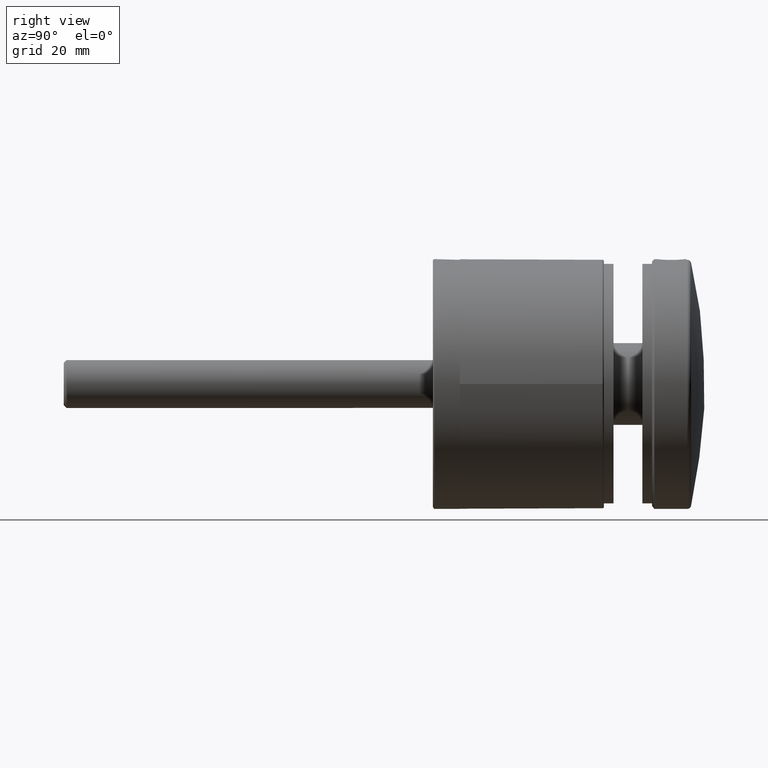
[diagram: clean part render]
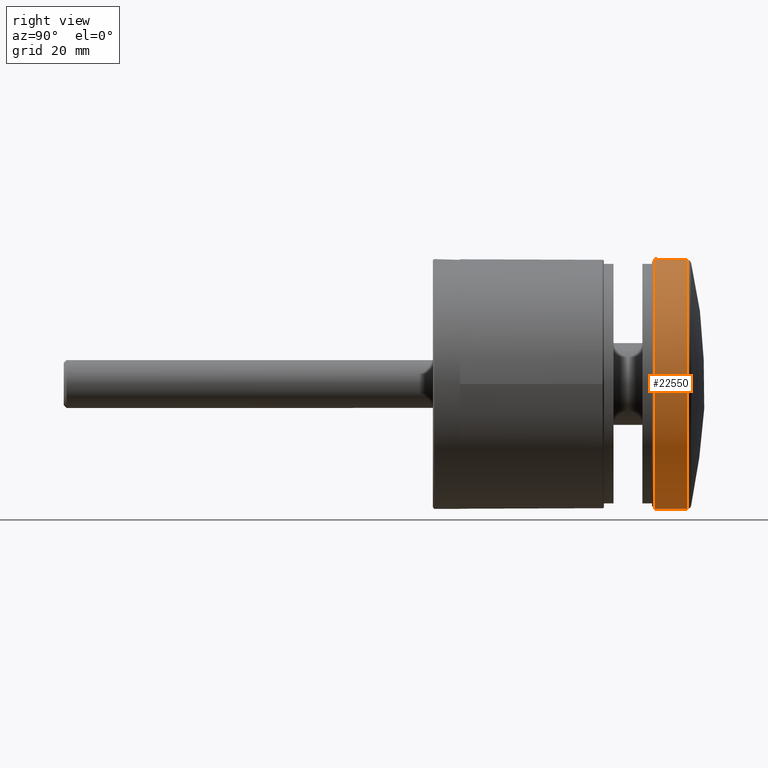
[diagram: same view with one face highlighted and labeled with its STEP entity id]
A machine part, right view. The second image highlights one B-rep face of the part: STEP entity #22550.
In plain terms, the highlighted cylindrical surface (bore or boss wall) has radius 26 mm, axis along (-0, -1, -0).
Its self-contained STEP definition (entity closure, byte-faithful):
#39 = DIRECTION ( 'NONE',  ( 0.000000000000000000, 0.000000000000000000, 1.000000000000000000 ) ) ;
#732 = CARTESIAN_POINT ( 'NONE',  ( -1.505373951746082462, 6.602352556404647466, 25.95689653493615268 ) ) ;
#845 = CARTESIAN_POINT ( 'NONE',  ( 1.504046466543740079, 1.396782041410566277, 25.95698036821287147 ) ) ;
#1066 = CARTESIAN_POINT ( 'NONE',  ( -2.846471190645785576, 3.032397907654219793, 25.84382593197625511 ) ) ;
#1185 = CARTESIAN_POINT ( 'NONE',  ( 2.999999999999992895, 4.000000000000000000, 25.82634314028992151 ) ) ;
#2791 = DIRECTION ( 'NONE',  ( -0.000000000000000000, -1.000000000000000000, -0.000000000000000000 ) ) ;
#3423 = CARTESIAN_POINT ( 'NONE',  ( -0.3960800891403071788, 6.980161338370850288, 25.99769051530947905 ) ) ;
#3545 = CARTESIAN_POINT ( 'NONE',  ( 1.982834401776006228, 1.740222352776626513, 25.92465261906890817 ) ) ;
#3778 = CARTESIAN_POINT ( 'NONE',  ( 2.999999999999993339, 3.801628608766003392, 25.82634314028991795 ) ) ;
#3892 = CARTESIAN_POINT ( 'NONE',  ( -2.980222010311322833, 3.604079092470431345, 25.82866189750346564 ) ) ;
#4013 = CARTESIAN_POINT ( 'NONE',  ( 2.999999999999992895, 4.000000000000000000, 25.82634314028992151 ) ) ;
#5139 = EDGE_LOOP ( 'NONE', ( #19100 ) ) ;
#5215 = CARTESIAN_POINT ( 'NONE',  ( 2.999999999999993339, 4.000000000000000000, 25.82634314028992151 ) ) ;
#5626 = CIRCLE ( 'NONE', #31247, 26.00000000000001066 ) ;
#6095 = CARTESIAN_POINT ( 'NONE',  ( 2.904216902360973407, 3.222971408750603395, 25.83731794412977223 ) ) ;
#6320 = CARTESIAN_POINT ( 'NONE',  ( -1.328482013767582792, 1.303001196752785029, 25.96667512040694348 ) ) ;
#6438 = CARTESIAN_POINT ( 'NONE',  ( -2.601817656857963179, 2.493778564744222770, 25.86972088012401016 ) ) ;
#6559 = CARTESIAN_POINT ( 'NONE',  ( -0.7796045846363192089, 6.903525052646829252, 25.98901706987857452 ) ) ;
#6666 = CARTESIAN_POINT ( 'NONE',  ( 2.695137482997135514, 5.332065158518951797, 25.86004491185305199 ) ) ;
#6782 = CARTESIAN_POINT ( 'NONE',  ( 2.258024676797176777, 5.984830704652007505, 25.90213498332275321 ) ) ;
#7024 = CARTESIAN_POINT ( 'NONE',  ( 2.980516047926724532, 4.394512060106173124, 25.82862846835401172 ) ) ;
#8267 = CIRCLE ( 'NONE', #10911, 26.00000000000000355 ) ;
#8737 = CARTESIAN_POINT ( 'NONE',  ( 2.695823260802121091, 2.669138554755555059, 25.85997437936808296 ) ) ;
#8845 = CARTESIAN_POINT ( 'NONE',  ( -2.384525331870828602, 2.169099381935724047, 25.89065376688521880 ) ) ;
#8977 = CARTESIAN_POINT ( 'NONE',  ( -0.3931071775928804968, 1.019401675169617105, 25.99774064185299594 ) ) ;
#9191 = CARTESIAN_POINT ( 'NONE',  ( -2.385483644065925724, 5.829848765754352513, 25.89056907961828102 ) ) ;
#9389 = CARTESIAN_POINT ( 'NONE',  ( 0.000000000000000000, 7.363696180431180238, 0.000000000000000000 ) ) ;
#9647 = CARTESIAN_POINT ( 'NONE',  ( 2.902928602409396319, 4.782381752619130566, 25.83746369126679809 ) ) ;
#9793 = B_SPLINE_CURVE_WITH_KNOTS ( 'NONE', 3,
 ( #1185, #3778, #24773, #6095, #16994, #8737, #16879, #27601, #25120, #3545, #14531, #845, #30247, #30463, #14419, #30356, #11515, #19802, #8977, #14065, #33022, #6320, #24645, #33151, #24891, #14301, #8845, #6438, #27717, #1066, #32906, #3892, #22316, #27489, #27382, #19682, #11392, #19567, #24994, #9191, #22069, #17108, #32679, #732, #30007, #19332, #6559, #3423, #22426, #11739, #16756, #21963, #19459, #30123, #14173, #32805, #22798, #6782, #22897, #27941, #6666, #30818, #9647, #7024, #28287, #4013 ),
 .UNSPECIFIED., .T., .F.,
 ( 4, 2, 2, 2, 2, 2, 2, 2, 2, 2, 2, 2, 2, 2, 2, 2, 2, 2, 2, 2, 2, 2, 2, 2, 2, 2, 2, 2, 2, 2, 2, 2, 4 ),
 ( 0.000000000000000000, 0.0005866289597237325142, 0.001173257919447465028, 0.001759886879171197434, 0.002346515838894930057, 0.002933144798618661595, 0.003519773758342392700, 0.004106402718066124238, 0.004693031677789855777, 0.005279660637513587315, 0.005866289597237320588, 0.006452918556961051259, 0.007039547516684782798, 0.007626176476408515204, 0.008212805436132246742, 0.008799434395855978280, 0.009386063355579708084, 0.009972692315303441357, 0.01055932127502717116, 0.01114595023475090096, 0.01173257919447463250, 0.01231920815419836231, 0.01290583711392209211, 0.01349246607364582365, 0.01407909503336955345, 0.01466572399309328326, 0.01525235295281701479, 0.01583898191254074633, 0.01642561087226447614, 0.01701223983198820594, 0.01759886879171193574, 0.01818549775143566555, 0.01877212671115939535 ),
 .UNSPECIFIED. ) ;
#10429 = CARTESIAN_POINT ( 'NONE',  ( 0.000000000000000000, 0.000000000000000000, 0.000000000000000000 ) ) ;
#10471 = EDGE_CURVE ( 'NONE', #13008, #13008, #5626, .T. ) ;
#10911 = AXIS2_PLACEMENT_3D ( 'NONE', #18547, #29236, #39 ) ;
#11392 = CARTESIAN_POINT ( 'NONE',  ( -2.846869066070600418, 4.966189010268418969, 25.84378029847803759 ) ) ;
#11515 = CARTESIAN_POINT ( 'NONE',  ( 0.1974822290173371686, 1.000108484639914419, 25.99998748254342473 ) ) ;
#11556 = VERTEX_POINT ( 'NONE', #34351 ) ;
#11739 = CARTESIAN_POINT ( 'NONE',  ( 0.1955564443005269326, 7.000182106115289571, 26.00002101223518380 ) ) ;
#12753 = AXIS2_PLACEMENT_3D ( 'NONE', #10429, #2791, #24039 ) ;
#13008 = VERTEX_POINT ( 'NONE', #13268 ) ;
#13268 = CARTESIAN_POINT ( 'NONE',  ( 0.000000000000000000, 7.363696180431180238, -26.00000000000001066 ) ) ;
#14065 = CARTESIAN_POINT ( 'NONE',  ( -0.7779860760478974901, 1.095996333932699240, 25.98907057590951553 ) ) ;
#14173 = CARTESIAN_POINT ( 'NONE',  ( 1.500791135884891991, 6.605003154842454371, 25.95716343873233001 ) ) ;
#14301 = CARTESIAN_POINT ( 'NONE',  ( -2.260506445678780008, 2.017752952831319391, 25.90192761446530412 ) ) ;
#14419 = CARTESIAN_POINT ( 'NONE',  ( 0.7795573863352919242, 1.096333107480290225, 25.98903255766745346 ) ) ;
#14531 = CARTESIAN_POINT ( 'NONE',  ( 1.831915627833450300, 1.616098859863349224, 25.93590312176944579 ) ) ;
#16756 = CARTESIAN_POINT ( 'NONE',  ( 0.3907017863126584500, 6.980872926591825234, 25.99777258736625996 ) ) ;
#16866 = EDGE_CURVE ( 'NONE', #28048, #28048, #9793, .T. ) ;
#16879 = CARTESIAN_POINT ( 'NONE',  ( 2.603667476540603154, 2.496893369919255257, 25.86953563173867821 ) ) ;
#16994 = CARTESIAN_POINT ( 'NONE',  ( 2.846458888054142378, 3.032360067722771557, 25.84382730467126166 ) ) ;
#17108 = CARTESIAN_POINT ( 'NONE',  ( -1.985208033414803008, 6.257695942045461202, 25.92447032201572554 ) ) ;
#17833 = CYLINDRICAL_SURFACE ( 'NONE', #12753, 26.00000000000000355 ) ;
#18237 = ORIENTED_EDGE ( 'NONE', *, *, #16866, .T. ) ;
#18547 = CARTESIAN_POINT ( 'NONE',  ( 0.000000000000000000, 0.5000000000000247580, 0.000000000000000000 ) ) ;
#19100 = ORIENTED_EDGE ( 'NONE', *, *, #10471, .T. ) ;
#19332 = CARTESIAN_POINT ( 'NONE',  ( -0.9701622282910407069, 6.845599836776981917, 25.98252887103859265 ) ) ;
#19459 = CARTESIAN_POINT ( 'NONE',  ( 0.9650574209274820348, 6.847336946689359216, 25.98272007820415652 ) ) ;
#19567 = CARTESIAN_POINT ( 'NONE',  ( -2.697477801571565692, 5.327327462588559825, 25.85980002059914540 ) ) ;
#19682 = CARTESIAN_POINT ( 'NONE',  ( -2.904394120158761528, 4.776834733406312594, 25.83729836467458085 ) ) ;
#19802 = CARTESIAN_POINT ( 'NONE',  ( -0.1941723281477238106, 0.9998924283138148628, 26.00001241211577252 ) ) ;
#21766 = EDGE_CURVE ( 'NONE', #11556, #11556, #8267, .T. ) ;
#21963 = CARTESIAN_POINT ( 'NONE',  ( 0.7744147086170442007, 6.904915342896171815, 25.98917292353332797 ) ) ;
#22069 = CARTESIAN_POINT ( 'NONE',  ( -2.261499722814579005, 5.980873773457761722, 25.90183065763341830 ) ) ;
#22316 = CARTESIAN_POINT ( 'NONE',  ( -2.999926885587589354, 3.803025565148954623, 25.82635163329339534 ) ) ;
#22426 = CARTESIAN_POINT ( 'NONE',  ( -0.2011044140179858719, 6.999815328886819010, 25.99997869180360155 ) ) ;
#22550 = ADVANCED_FACE ( 'NONE', ( #24036, #25730, #27427 ), #17833, .T. ) ;
#22798 = CARTESIAN_POINT ( 'NONE',  ( 1.981300663533630546, 6.261122740550718824, 25.92477039080536017 ) ) ;
#22897 = CARTESIAN_POINT ( 'NONE',  ( 2.382280341642606381, 5.834022312362376006, 25.89086534581342747 ) ) ;
#23051 = EDGE_LOOP ( 'NONE', ( #25993 ) ) ;
#24036 = FACE_BOUND ( 'NONE', #29785, .T. ) ;
#24039 = DIRECTION ( 'NONE',  ( 0.000000000000000000, 0.000000000000000000, -1.000000000000000000 ) ) ;
#24645 = CARTESIAN_POINT ( 'NONE',  ( -1.503943005669261757, 1.396862869047133637, 25.95697701017397918 ) ) ;
#24773 = CARTESIAN_POINT ( 'NONE',  ( 2.980518406029749823, 3.606605441196660156, 25.82862722626442675 ) ) ;
#24891 = CARTESIAN_POINT ( 'NONE',  ( -1.980419221218370662, 1.737892032816936272, 25.92484683164366643 ) ) ;
#24994 = CARTESIAN_POINT ( 'NONE',  ( -2.604463692874471992, 5.501881351551262789, 25.86945821533745971 ) ) ;
#25120 = CARTESIAN_POINT ( 'NONE',  ( 2.259367191999807289, 2.016697912200028142, 25.90201740359188420 ) ) ;
#25730 = FACE_OUTER_BOUND ( 'NONE', #23051, .T. ) ;
#25993 = ORIENTED_EDGE ( 'NONE', *, *, #21766, .T. ) ;
#27382 = CARTESIAN_POINT ( 'NONE',  ( -2.981150286349716794, 4.389513001626720090, 25.82855464327466777 ) ) ;
#27427 = FACE_OUTER_BOUND ( 'NONE', #5139, .T. ) ;
#27489 = CARTESIAN_POINT ( 'NONE',  ( -3.000072698718970532, 4.194740979912316980, 25.82633469557359263 ) ) ;
#27601 = CARTESIAN_POINT ( 'NONE',  ( 2.385970178955806098, 2.170912748138677184, 25.89052151725270079 ) ) ;
#27717 = CARTESIAN_POINT ( 'NONE',  ( -2.695847567316081328, 2.669188990846433018, 25.85997182781258985 ) ) ;
#27941 = CARTESIAN_POINT ( 'NONE',  ( 2.601881734802035773, 5.506356168548263597, 25.86971935331581562 ) ) ;
#28048 = VERTEX_POINT ( 'NONE', #5215 ) ;
#28287 = CARTESIAN_POINT ( 'NONE',  ( 2.999999999999992450, 4.198371391233995276, 25.82634314028992506 ) ) ;
#29236 = DIRECTION ( 'NONE',  ( 0.000000000000000000, 1.000000000000000000, 0.000000000000000000 ) ) ;
#29785 = EDGE_LOOP ( 'NONE', ( #18237 ) ) ;
#30007 = CARTESIAN_POINT ( 'NONE',  ( -1.333240681001385708, 6.694647002260365021, 25.96643006980511714 ) ) ;
#30123 = CARTESIAN_POINT ( 'NONE',  ( 1.328453288779689379, 6.697012304977476127, 25.96667653642899509 ) ) ;
#30247 = CARTESIAN_POINT ( 'NONE',  ( 1.329678934057937578, 1.303684355303022624, 25.96660511796632420 ) ) ;
#30356 = CARTESIAN_POINT ( 'NONE',  ( 0.3922386663974005705, 1.019204809134353296, 25.99776282357143131 ) ) ;
#30463 = CARTESIAN_POINT ( 'NONE',  ( 0.9687707735393037423, 1.154012067514833983, 25.98257320991145392 ) ) ;
#30676 = DIRECTION ( 'NONE',  ( 0.000000000000000000, 0.000000000000000000, -1.000000000000000000 ) ) ;
#30818 = CARTESIAN_POINT ( 'NONE',  ( 2.845128384431391044, 4.971291982309686830, 25.84397286354045065 ) ) ;
#31247 = AXIS2_PLACEMENT_3D ( 'NONE', #9389, #33110, #30676 ) ;
#32679 = CARTESIAN_POINT ( 'NONE',  ( -1.831066051039925258, 6.384446828753051584, 25.93595623023576380 ) ) ;
#32805 = CARTESIAN_POINT ( 'NONE',  ( 1.826971693114299411, 6.387590815623325646, 25.93624649503414759 ) ) ;
#32906 = CARTESIAN_POINT ( 'NONE',  ( -2.903294483696319261, 3.219386307638908207, 25.83742208091260650 ) ) ;
#33022 = CARTESIAN_POINT ( 'NONE',  ( -0.9650708797723910326, 1.152667001800417257, 25.98271963183762523 ) ) ;
#33110 = DIRECTION ( 'NONE',  ( -0.000000000000000000, -1.000000000000000000, -0.000000000000000000 ) ) ;
#33151 = CARTESIAN_POINT ( 'NONE',  ( -1.828850462055285675, 1.613899944619425542, 25.93611007954820735 ) ) ;
#34351 = CARTESIAN_POINT ( 'NONE',  ( 0.000000000000000000, 0.5000000000000247580, 26.00000000000000355 ) ) ;